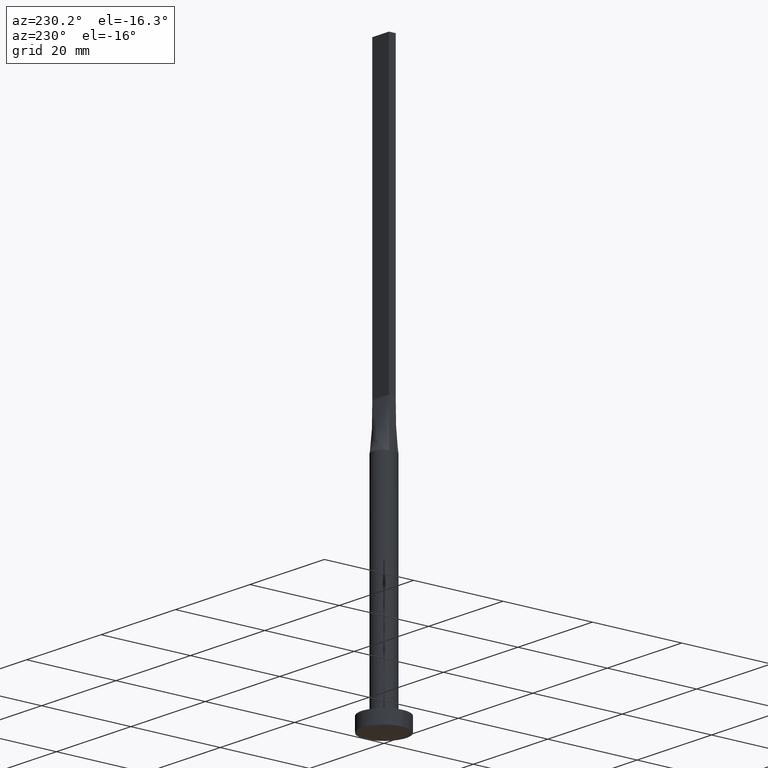
[diagram: clean part render]
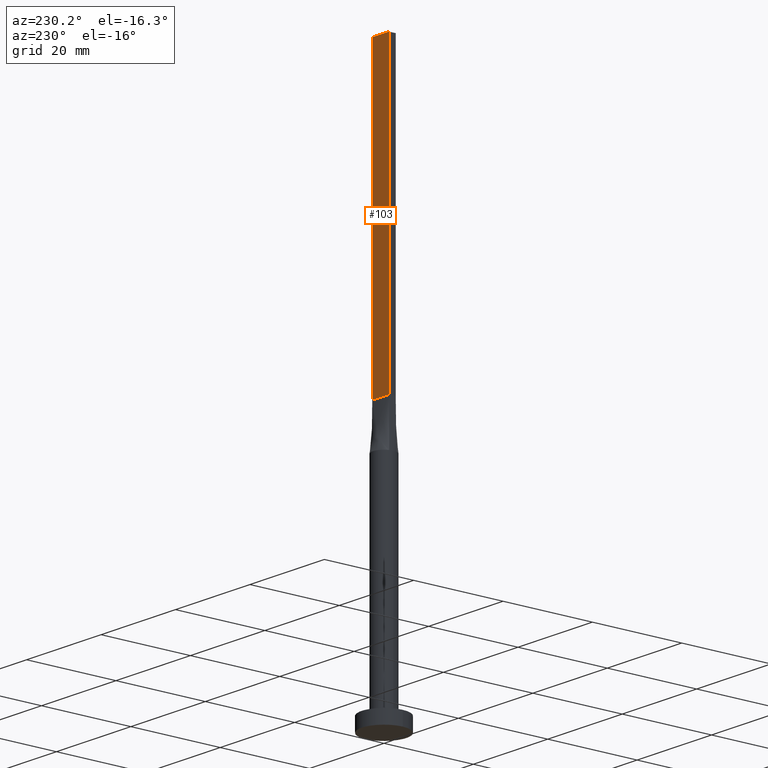
[diagram: same view with one face highlighted and labeled with its STEP entity id]
A machine part, auxiliary view. The second image highlights one B-rep face of the part: STEP entity #103.
In plain terms, the highlighted planar face has unit normal (0, -1, 0).
Its self-contained STEP definition (entity closure, byte-faithful):
#32 = CARTESIAN_POINT ( 'NONE',  ( -2.249999999999999556, 0.7500000000000002220, 125.0000000000000000 ) ) ;
#42 = DIRECTION ( 'NONE',  ( -1.000000000000000000, 0.000000000000000000, 0.000000000000000000 ) ) ;
#83 = CARTESIAN_POINT ( 'NONE',  ( 2.249999999999999556, 0.7500000000000002220, 60.00000000000000711 ) ) ;
#103 = ADVANCED_FACE ( 'NONE', ( #541 ), #546, .F. ) ;
#109 = CARTESIAN_POINT ( 'NONE',  ( 2.249999999999999556, 0.7500000000000002220, 125.0000000000000000 ) ) ;
#125 = VECTOR ( 'NONE', #566, 1000.000000000000000 ) ;
#128 = DIRECTION ( 'NONE',  ( 0.000000000000000000, -1.000000000000000000, 0.000000000000000000 ) ) ;
#146 = EDGE_CURVE ( 'NONE', #415, #445, #505, .T. ) ;
#164 = VERTEX_POINT ( 'NONE', #83 ) ;
#165 = CARTESIAN_POINT ( 'NONE',  ( -2.249999999999999556, 0.7500000000000002220, 125.0000000000000000 ) ) ;
#166 = LINE ( 'NONE', #32, #452 ) ;
#182 = VECTOR ( 'NONE', #438, 1000.000000000000000 ) ;
#195 = LINE ( 'NONE', #524, #182 ) ;
#201 = ORIENTED_EDGE ( 'NONE', *, *, #146, .F. ) ;
#247 = ORIENTED_EDGE ( 'NONE', *, *, #489, .F. ) ;
#299 = DIRECTION ( 'NONE',  ( 0.000000000000000000, -0.000000000000000000, -1.000000000000000000 ) ) ;
#303 = ORIENTED_EDGE ( 'NONE', *, *, #549, .T. ) ;
#322 = VERTEX_POINT ( 'NONE', #377 ) ;
#331 = EDGE_CURVE ( 'NONE', #164, #322, #195, .T. ) ;
#333 = ORIENTED_EDGE ( 'NONE', *, *, #331, .T. ) ;
#377 = CARTESIAN_POINT ( 'NONE',  ( -2.249999999999999556, 0.7500000000000002220, 60.00000000000000711 ) ) ;
#378 = LINE ( 'NONE', #109, #125 ) ;
#387 = EDGE_LOOP ( 'NONE', ( #333, #247, #201, #303 ) ) ;
#399 = CARTESIAN_POINT ( 'NONE',  ( 2.249999999999999556, 0.7500000000000002220, 125.0000000000000000 ) ) ;
#412 = CARTESIAN_POINT ( 'NONE',  ( 2.249999999999999556, 0.7500000000000002220, 125.0000000000000000 ) ) ;
#415 = VERTEX_POINT ( 'NONE', #412 ) ;
#438 = DIRECTION ( 'NONE',  ( -1.000000000000000000, -0.000000000000000000, -0.000000000000000000 ) ) ;
#443 = DIRECTION ( 'NONE',  ( -0.000000000000000000, -0.000000000000000000, -1.000000000000000000 ) ) ;
#445 = VERTEX_POINT ( 'NONE', #165 ) ;
#449 = VECTOR ( 'NONE', #42, 1000.000000000000000 ) ;
#452 = VECTOR ( 'NONE', #443, 1000.000000000000000 ) ;
#469 = CARTESIAN_POINT ( 'NONE',  ( 2.249999999999999556, 0.7500000000000002220, 125.0000000000000000 ) ) ;
#489 = EDGE_CURVE ( 'NONE', #445, #322, #166, .T. ) ;
#505 = LINE ( 'NONE', #469, #449 ) ;
#524 = CARTESIAN_POINT ( 'NONE',  ( -2.249999999999999556, 0.7500000000000002220, 60.00000000000000711 ) ) ;
#541 = FACE_OUTER_BOUND ( 'NONE', #387, .T. ) ;
#546 = PLANE ( 'NONE',  #573 ) ;
#549 = EDGE_CURVE ( 'NONE', #415, #164, #378, .T. ) ;
#566 = DIRECTION ( 'NONE',  ( -0.000000000000000000, -0.000000000000000000, -1.000000000000000000 ) ) ;
#573 = AXIS2_PLACEMENT_3D ( 'NONE', #399, #128, #299 ) ;